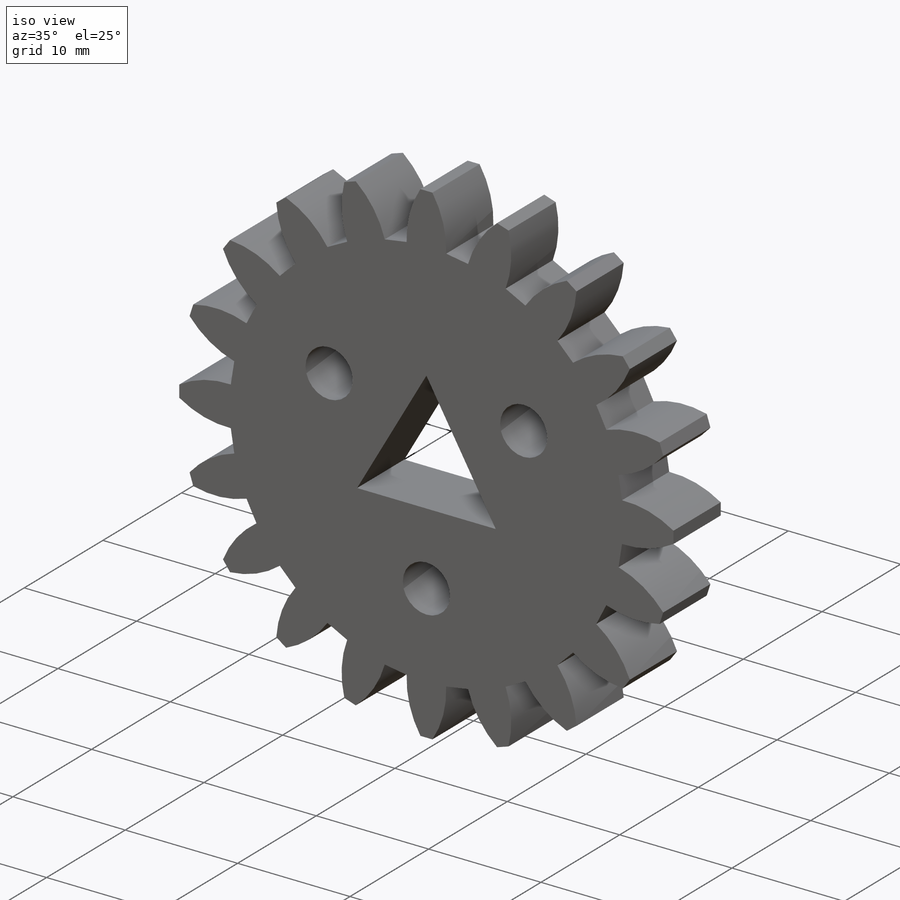
[diagram: iso view]
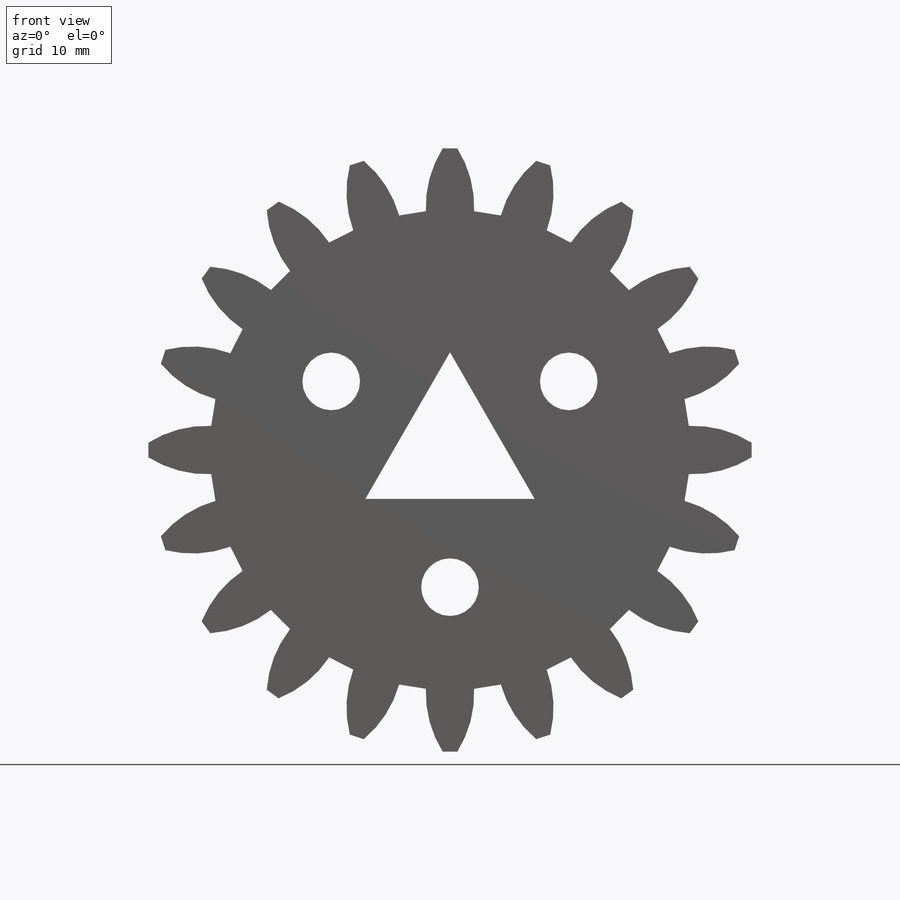
[diagram: front view]
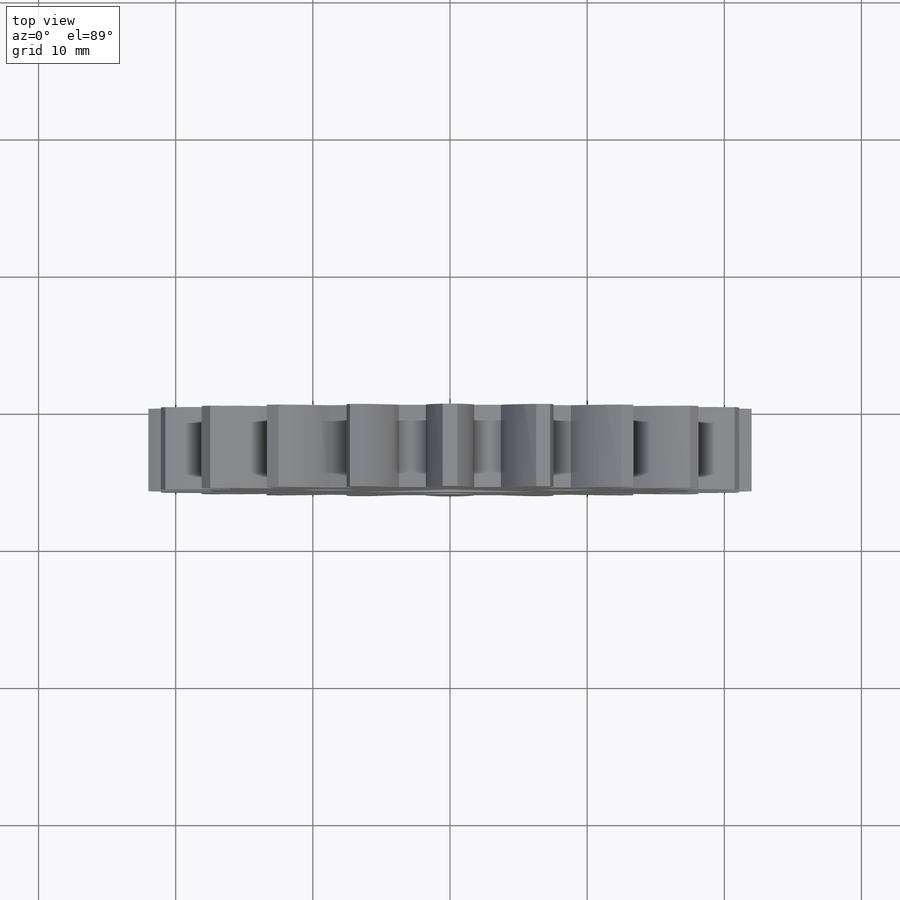
[diagram: top view]
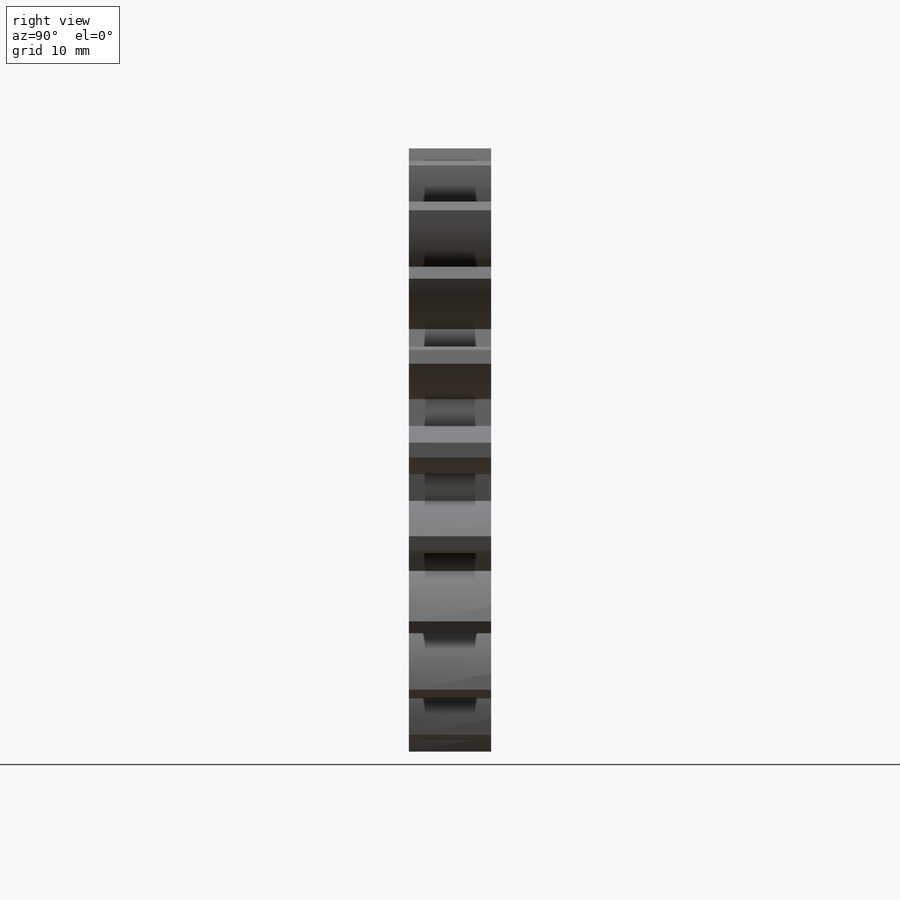
[diagram: right view]
SOLIDWORKS PART (.sldprt)
format: sldprt  version: not decoded by parser v0  size: 363,520 bytes
history: native  units: mm
features: sketch x4, extrude x2, cut_extrude x2, material x1 (+14 scaffold rows collapsed)
feature tree (23):
  scaffold x14  (default folders/planes/origin — collapsed)
  material  "Material <not specified>"
  sketch  "Sketch1"
  extrude  "Boss-Extrude1"  Depth=6mm
  sketch  "Sketch2"  dims[c1.D1=5.0mm c1.D2=5.0mm c1.D3=5.0mm c2.D2=5.0mm c2.D3=5.0mm c2.D4=7.125mm c2.D1=7.125mm c3.D2=7.125mm c3.D3=~49.866141mm c4.D3=120.0deg c4.D5=~25.147963mm c5.D5=120.0deg]
  extrude  "Boss-Extrude2"  [1 undecoded]
  sketch  "Sketch4"  dims[c1.D3=4.2mm c1.D1=~52.249532mm c2.D1=120.0deg c2.D2=~52.249532mm c3.D2=120.0deg c3.D4=10.0mm c3.D5=3.0]
  cut_extrude  "Cut-Extrude2"  Depth=10mm
  cut_extrude  "Cut-Extrude4"  [1 undecoded]
  sketch  "Sketch2<3>"  dims[D1=10.0mm]
decode coverage: 5 of 8 modeling features carry decoded parameters
note: ~ marks probable driven/reference dimensions
note: 2 parameter values undecoded
note: suppression state not decoded; provenance and decode notes live in map.json
